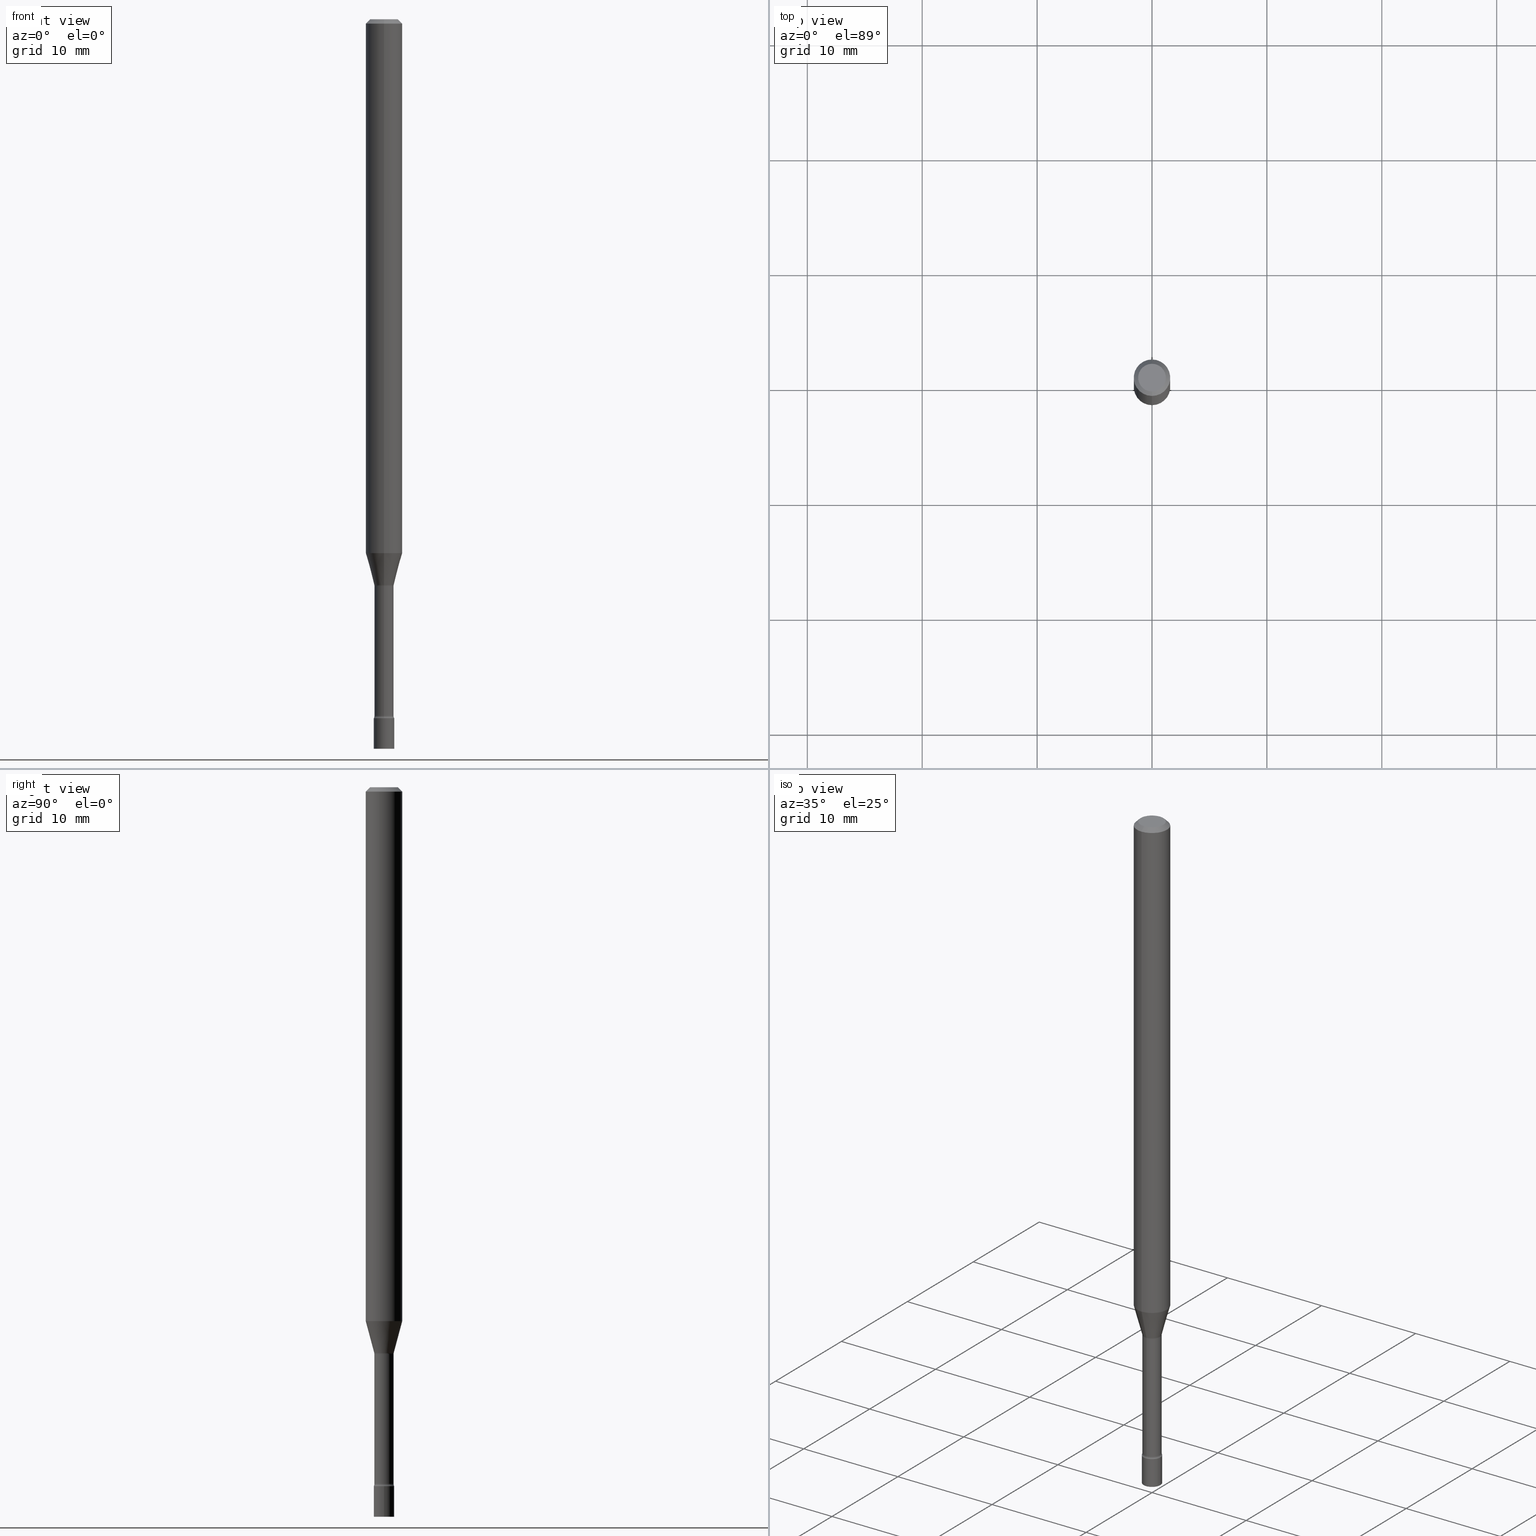
[diagram: canonical four-view strip — front | top / right | iso, engineering-drawing reading convention]
A machine part, canonical four-view strip (front | top / right | iso — engineering-drawing reading convention). The complete STEP part file that produces these views, byte-faithful:
ISO-10303-21;
HEADER;
FILE_DESCRIPTION (( 'STEP AP203' ),
    '1' );
FILE_NAME ('03577.STEP',
    '2024-03-08T21:54:35',
    ( '' ),
    ( '' ),
    'SwSTEP 2.0',
    'SolidWorks 2023',
    '' );
FILE_SCHEMA (( 'CONFIG_CONTROL_DESIGN' ));
ENDSEC;

DATA;
#1 = ORIENTED_EDGE ( 'NONE', *, *, #314, .F. ) ;
#2 = PERSON_AND_ORGANIZATION ( #448, #469 ) ;
#3 = DIRECTION ( 'NONE',  ( 1.000000000000000000, -6.982962677686265922E-15, 4.876176775795936353E-29 ) ) ;
#4 = DIRECTION ( 'NONE',  ( -6.982962677686265133E-15, -1.000000000000000000, 3.491404096004088534E-15 ) ) ;
#5 = PERSON_AND_ORGANIZATION_ROLE ( 'design_supplier' ) ;
#6 = DIRECTION ( 'NONE',  ( 2.438088387897960049E-29, -3.491481338843145188E-15, -1.000000000000000000 ) ) ;
#7 = ORIENTED_EDGE ( 'NONE', *, *, #312, .F. ) ;
#8 = DIRECTION ( 'NONE',  ( 6.982962677686265922E-15, 1.000000000000000000, -3.483106191921935554E-15 ) ) ;
#9 = CARTESIAN_POINT ( 'NONE',  ( 3.407447217031636901E-16, 0.03341111260565721164, -1.938092501787273214 ) ) ;
#10 = CIRCLE ( 'NONE', #306, 0.01500000000000001853 ) ;
#11 = AXIS2_PLACEMENT_3D ( 'NONE', #175, #324, #55 ) ;
#12 = CYLINDRICAL_SURFACE ( 'NONE', #33, 0.03290000000000001951 ) ;
#13 = DIRECTION ( 'NONE',  ( -2.445522744571361657E-29, 3.491404096004088929E-15, 1.000000000000000000 ) ) ;
#14 = DIRECTION ( 'NONE',  ( -6.982962677686266711E-15, -1.000000000000000000, 0.000000000000000000 ) ) ;
#15 = ORIENTED_EDGE ( 'NONE', *, *, #112, .T. ) ;
#16 = CC_DESIGN_DATE_AND_TIME_ASSIGNMENT ( #65, #228, ( #121 ) ) ;
#17 = ADVANCED_BREP_SHAPE_REPRESENTATION ( '03577', ( #242, #407, #245 ), #375 ) ;
#18 = PERSON_AND_ORGANIZATION_ROLE ( 'design_owner' ) ;
#19 = ORIENTED_EDGE ( 'NONE', *, *, #79, .T. ) ;
#20 = DIRECTION ( 'NONE',  ( -6.982962677686265133E-15, -1.000000000000000000, 3.491404096004088534E-15 ) ) ;
#21 = CALENDAR_DATE ( 2024, 8, 3 ) ;
#22 = CARTESIAN_POINT ( 'NONE',  ( 0.000000000000000000, 0.000000000000000000, 0.000000000000000000 ) ) ;
#23 = AXIS2_PLACEMENT_3D ( 'NONE', #271, #36, #191 ) ;
#24 = ORIENTED_EDGE ( 'NONE', *, *, #309, .T. ) ;
#25 = CARTESIAN_POINT ( 'NONE',  ( 5.838179168722291637E-29, -8.335372575132118350E-15, -2.387345589506696175 ) ) ;
#26 = FACE_OUTER_BOUND ( 'NONE', #229, .T. ) ;
#27 = EDGE_CURVE ( 'NONE', #495, #150, #88, .T. ) ;
#28 = APPROVAL ( #453, 'UNSPECIFIED' ) ;
#29 = CARTESIAN_POINT ( 'NONE',  ( -3.344839122611141326E-16, -0.04790000000000838032, -2.387345589506695731 ) ) ;
#30 = ORIENTED_EDGE ( 'NONE', *, *, #327, .T. ) ;
#31 = CARTESIAN_POINT ( 'NONE',  ( 4.474160396507796531E-29, -6.387633060957110208E-15, -1.829531296095961546 ) ) ;
#32 = DIRECTION ( 'NONE',  ( -2.445522744571361657E-29, 3.491404096004088929E-15, 1.000000000000000000 ) ) ;
#33 = AXIS2_PLACEMENT_3D ( 'NONE', #187, #503, #20 ) ;
#34 = ORIENTED_EDGE ( 'NONE', *, *, #449, .T. ) ;
#35 = ORIENTED_EDGE ( 'NONE', *, *, #396, .F. ) ;
#36 = DIRECTION ( 'NONE',  ( 2.445522744571361377E-29, -3.491404096004088929E-15, -1.000000000000000000 ) ) ;
#37 = LINE ( 'NONE', #86, #489 ) ;
#38 = AXIS2_PLACEMENT_3D ( 'NONE', #488, #378, #490 ) ;
#39 = CARTESIAN_POINT ( 'NONE',  ( 5.856897790813402508E-29, -8.362097806529333416E-15, -2.395000000000000018 ) ) ;
#40 = CARTESIAN_POINT ( 'NONE',  ( 0.03500000000000000333, -2.444036937190193250E-16, 1.706661871528577808E-30 ) ) ;
#41 = DIRECTION ( 'NONE',  ( -2.445522744571361377E-29, 3.491404096004088929E-15, 1.000000000000000000 ) ) ;
#42 = EDGE_LOOP ( 'NONE', ( #326, #232, #512, #414 ) ) ;
#43 = DIRECTION ( 'NONE',  ( -2.445468806185136597E-29, 3.491481338843145583E-15, 1.000000000000000000 ) ) ;
#44 = ORIENTED_EDGE ( 'NONE', *, *, #240, .F. ) ;
#45 = APPROVAL ( #251, 'UNSPECIFIED' ) ;
#46 = CARTESIAN_POINT ( 'NONE',  ( 2.374002335562198975E-16, 0.03341111260565721164, -1.938092501787273214 ) ) ;
#47 = ORIENTED_EDGE ( 'NONE', *, *, #460, .F. ) ;
#48 = DIRECTION ( 'NONE',  ( -2.445522744571361657E-29, 3.491404096004088929E-15, 1.000000000000000000 ) ) ;
#49 = PRODUCT_DEFINITION_FORMATION_WITH_SPECIFIED_SOURCE ( 'ANY', '', #520, .NOT_KNOWN. ) ;
#50 = CARTESIAN_POINT ( 'NONE',  ( -3.773273898774340269E-16, -0.04749999999999999362, 1.369241145974700294E-16 ) ) ;
#51 = CIRCLE ( 'NONE', #258, 0.01500000000000001853 ) ;
#52 = DIRECTION ( 'NONE',  ( -2.445522744571361657E-29, 3.491404096004088929E-15, 1.000000000000000000 ) ) ;
#53 = PERSON_AND_ORGANIZATION_ROLE ( 'creator' ) ;
#54 = VERTEX_POINT ( 'NONE', #93 ) ;
#55 = DIRECTION ( 'NONE',  ( -6.982962677686265922E-15, -1.000000000000000000, 3.491404096004088929E-15 ) ) ;
#56 = CYLINDRICAL_SURFACE ( 'NONE', #462, 0.06250000000000000000 ) ;
#57 = DIRECTION ( 'NONE',  ( -6.982962677686267499E-15, -1.000000000000000000, 0.000000000000000000 ) ) ;
#58 = ADVANCED_FACE ( 'NONE', ( #138 ), #510, .F. ) ;
#59 = VERTEX_POINT ( 'NONE', #134 ) ;
#60 = DIRECTION ( 'NONE',  ( -6.982962677686265922E-15, -1.000000000000000000, 0.000000000000000000 ) ) ;
#61 = AXIS2_PLACEMENT_3D ( 'NONE', #420, #225, #336 ) ;
#62 = CALENDAR_DATE ( 2024, 8, 3 ) ;
#63 = VERTEX_POINT ( 'NONE', #164 ) ;
#64 = DIRECTION ( 'NONE',  ( -2.445468806185136877E-29, 3.491481338843145188E-15, 1.000000000000000000 ) ) ;
#65 = DATE_AND_TIME ( #21, #247 ) ;
#66 = ORIENTED_EDGE ( 'NONE', *, *, #399, .T. ) ;
#67 = CARTESIAN_POINT ( 'NONE',  ( -2.297394720958782513E-16, -0.03290000000000001951, 1.148671947585345758E-16 ) ) ;
#68 = VERTEX_POINT ( 'NONE', #491 ) ;
#69 = AXIS2_PLACEMENT_3D ( 'NONE', #297, #145, #14 ) ;
#70 = ORIENTED_EDGE ( 'NONE', *, *, #220, .T. ) ;
#71 = AXIS2_PLACEMENT_3D ( 'NONE', #171, #291, #207 ) ;
#72 = ORIENTED_EDGE ( 'NONE', *, *, #317, .F. ) ;
#73 = DIRECTION ( 'NONE',  ( -2.445522744571361657E-29, 3.491404096004088929E-15, 1.000000000000000000 ) ) ;
#74 = CARTESIAN_POINT ( 'NONE',  ( 4.739649294203989470E-29, -6.766664099174897486E-15, -1.938092501787273214 ) ) ;
#75 = DIRECTION ( 'NONE',  ( -6.982962677686265922E-15, -1.000000000000000000, 3.483106191921935554E-15 ) ) ;
#76 = DIRECTION ( 'NONE',  ( -6.982962677686266711E-15, -1.000000000000000000, 0.000000000000000000 ) ) ;
#77 = ORIENTED_EDGE ( 'NONE', *, *, #231, .F. ) ;
#78 = ORIENTED_EDGE ( 'NONE', *, *, #236, .T. ) ;
#79 = EDGE_CURVE ( 'NONE', #421, #115, #257, .T. ) ;
#80 = DIRECTION ( 'NONE',  ( -6.982962677686266711E-15, -1.000000000000000000, 0.000000000000000000 ) ) ;
#81 = ORIENTED_EDGE ( 'NONE', *, *, #312, .T. ) ;
#82 = TOROIDAL_SURFACE ( 'NONE', #370, 0.04789999999999999813, 0.01500000000000002373 ) ;
#83 = FACE_OUTER_BOUND ( 'NONE', #372, .T. ) ;
#84 = ORIENTED_EDGE ( 'NONE', *, *, #27, .T. ) ;
#85 = ORIENTED_EDGE ( 'NONE', *, *, #159, .T. ) ;
#86 = CARTESIAN_POINT ( 'NONE',  ( 2.337685600650730505E-16, 0.03290000000000001951, -1.148671947585345758E-16 ) ) ;
#87 = ORIENTED_EDGE ( 'NONE', *, *, #92, .F. ) ;
#88 = CIRCLE ( 'NONE', #170, 0.03500000000000000333 ) ;
#89 = CIRCLE ( 'NONE', #155, 0.03290000000000004032 ) ;
#90 = DIRECTION ( 'NONE',  ( -6.982962677686265922E-15, -1.000000000000000000, 3.491404096004088929E-15 ) ) ;
#91 = ADVANCED_FACE ( 'NONE', ( #290 ), #56, .T. ) ;
#92 = EDGE_CURVE ( 'NONE', #63, #274, #363, .T. ) ;
#93 = CARTESIAN_POINT ( 'NONE',  ( -2.333085523452773116E-16, -0.03341111260567074248, -1.938092501787273214 ) ) ;
#94 = LENGTH_MEASURE_WITH_UNIT ( LENGTH_MEASURE( 0.02539999999999999897 ), #98 );
#95 = CONICAL_SURFACE ( 'NONE', #69, 0.03341111260566397706, 0.2617993877991501850 ) ;
#96 = CARTESIAN_POINT ( 'NONE',  ( -2.333085523452773116E-16, -0.03341111260567074248, -1.938092501787273214 ) ) ;
#97 = VERTEX_POINT ( 'NONE', #435 ) ;
#98 =( LENGTH_UNIT ( ) NAMED_UNIT ( * ) SI_UNIT ( $, .METRE. ) );
#99 = CARTESIAN_POINT ( 'NONE',  ( 6.113672015462842613E-29, -8.728703347107864943E-15, -2.500000000000000000 ) ) ;
#100 = ORIENTED_EDGE ( 'NONE', *, *, #129, .T. ) ;
#101 = COORDINATED_UNIVERSAL_TIME_OFFSET ( 5, 0, .BEHIND. ) ;
#102 = FACE_OUTER_BOUND ( 'NONE', #174, .T. ) ;
#103 = CIRCLE ( 'NONE', #388, 0.04749999999999999362 ) ;
#104 = VECTOR ( 'NONE', #219, 39.37007874015748143 ) ;
#105 = DIRECTION ( 'NONE',  ( -6.982962677686265922E-15, -1.000000000000000000, 0.000000000000000000 ) ) ;
#106 = ORIENTED_EDGE ( 'NONE', *, *, #220, .F. ) ;
#107 = EDGE_CURVE ( 'NONE', #481, #274, #166, .T. ) ;
#108 = APPROVAL_ROLE ( '' ) ;
#109 = ORIENTED_EDGE ( 'NONE', *, *, #309, .F. ) ;
#110 = DIRECTION ( 'NONE',  ( -2.445522744571361657E-29, 3.491404096004088929E-15, 1.000000000000000000 ) ) ;
#111 = ORIENTED_EDGE ( 'NONE', *, *, #211, .F. ) ;
#112 = EDGE_CURVE ( 'NONE', #506, #421, #10, .T. ) ;
#113 = DATE_AND_TIME ( #298, #194 ) ;
#114 = CYLINDRICAL_SURFACE ( 'NONE', #369, 0.03500000000000000333 ) ;
#115 = VERTEX_POINT ( 'NONE', #356 ) ;
#116 = CARTESIAN_POINT ( 'NONE',  ( -4.364351673553912750E-16, -0.06250000000000005551, -0.01499999999999981209 ) ) ;
#117 = CIRCLE ( 'NONE', #239, 0.01500000000000000291 ) ;
#118 = VERTEX_POINT ( 'NONE', #255 ) ;
#119 = ADVANCED_FACE ( 'NONE', ( #466 ), #114, .T. ) ;
#120 = DIRECTION ( 'NONE',  ( -6.982962677686265922E-15, -1.000000000000000000, 4.370956789862821150E-15 ) ) ;
#121 = SECURITY_CLASSIFICATION ( '', '', #325 ) ;
#122 = CC_DESIGN_PERSON_AND_ORGANIZATION_ASSIGNMENT ( #364, #5, ( #49 ) ) ;
#123 = DIRECTION ( 'NONE',  ( -6.982962677686266711E-15, -1.000000000000000000, 3.491404096004088929E-15 ) ) ;
#124 = AXIS2_PLACEMENT_3D ( 'NONE', #509, #362, #4 ) ;
#125 = CC_DESIGN_SECURITY_CLASSIFICATION ( #121, ( #49 ) ) ;
#126 = ORIENTED_EDGE ( 'NONE', *, *, #149, .T. ) ;
#127 = APPLICATION_CONTEXT ( 'configuration controlled 3d designs of mechanical parts and assemblies' ) ;
#128 = UNCERTAINTY_MEASURE_WITH_UNIT (LENGTH_MEASURE( 1.000000000000000082E-05 ), #446, 'distance_accuracy_value', 'NONE');
#129 = EDGE_CURVE ( 'NONE', #118, #186, #499, .T. ) ;
#130 = ORIENTED_EDGE ( 'NONE', *, *, #289, .T. ) ;
#131 = CC_DESIGN_DATE_AND_TIME_ASSIGNMENT ( #330, #296, ( #193 ) ) ;
#132 = DIRECTION ( 'NONE',  ( 1.839019923739599526E-15, 0.2588190451025248473, 0.9659258262890670910 ) ) ;
#133 = TOROIDAL_SURFACE ( 'NONE', #213, 0.04790000000000004671, 0.01500000000000000638 ) ;
#134 = CARTESIAN_POINT ( 'NONE',  ( 0.03500000000000000333, -8.606501500248353382E-15, -2.395000000000000018 ) ) ;
#135 = FACE_OUTER_BOUND ( 'NONE', #380, .T. ) ;
#136 = ORIENTED_EDGE ( 'NONE', *, *, #299, .T. ) ;
#137 = PERSON_AND_ORGANIZATION ( #448, #469 ) ;
#138 = FACE_OUTER_BOUND ( 'NONE', #301, .T. ) ;
#139 = CALENDAR_DATE ( 2024, 8, 3 ) ;
#140 = AXIS2_PLACEMENT_3D ( 'NONE', #400, #43, #199 ) ;
#141 = VERTEX_POINT ( 'NONE', #153 ) ;
#142 = PERSON_AND_ORGANIZATION ( #448, #469 ) ;
#143 = DIRECTION ( 'NONE',  ( -2.445522744571361657E-29, 3.491404096004088929E-15, 1.000000000000000000 ) ) ;
#144 = PERSON_AND_ORGANIZATION ( #448, #469 ) ;
#145 = DIRECTION ( 'NONE',  ( -2.445522744571361657E-29, 3.491404096004088929E-15, 1.000000000000000000 ) ) ;
#146 = APPLICATION_PROTOCOL_DEFINITION ( 'international standard', 'config_control_design', 1994, #169 ) ;
#147 = CIRCLE ( 'NONE', #223, 0.06250000000000000000 ) ;
#148 = FACE_OUTER_BOUND ( 'NONE', #310, .T. ) ;
#149 = EDGE_CURVE ( 'NONE', #237, #274, #162, .T. ) ;
#150 = VERTEX_POINT ( 'NONE', #413 ) ;
#151 = FACE_OUTER_BOUND ( 'NONE', #184, .T. ) ;
#152 = ORIENTED_EDGE ( 'NONE', *, *, #474, .F. ) ;
#153 = CARTESIAN_POINT ( 'NONE',  ( -4.364351673553470495E-16, -0.06250000000000642542, -1.829531296095961324 ) ) ;
#154 = DIRECTION ( 'NONE',  ( -2.445522744571361657E-29, 3.491404096004088929E-15, 1.000000000000000000 ) ) ;
#155 = AXIS2_PLACEMENT_3D ( 'NONE', #445, #254, #410 ) ;
#156 = CARTESIAN_POINT ( 'NONE',  ( 6.113672015462842613E-29, -8.728703347107864943E-15, -2.500000000000000000 ) ) ;
#157 = DIRECTION ( 'NONE',  ( -6.982962677686265922E-15, -1.000000000000000000, 4.370956789862821150E-15 ) ) ;
#158 = COORDINATED_UNIVERSAL_TIME_OFFSET ( 5, 0, .BEHIND. ) ;
#159 = EDGE_CURVE ( 'NONE', #150, #495, #441, .T. ) ;
#160 = CARTESIAN_POINT ( 'NONE',  ( 3.668284116857050035E-31, -5.237106144006144215E-17, -0.01500000000000003067 ) ) ;
#161 = DIRECTION ( 'NONE',  ( 1.000000000000000000, -6.982962677686276966E-15, 0.000000000000000000 ) ) ;
#162 = CIRCLE ( 'NONE', #342, 0.06250000000000000000 ) ;
#163 = CARTESIAN_POINT ( 'NONE',  ( -4.364351673553916201E-16, -0.06250000000000000000, 2.182127560002555580E-16 ) ) ;
#164 = CARTESIAN_POINT ( 'NONE',  ( 3.840629472727447874E-16, 0.04749999999999999362, -1.947592745229184119E-16 ) ) ;
#165 = TOROIDAL_SURFACE ( 'NONE', #11, 0.04790000000000004671, 0.01500000000000000638 ) ;
#166 = LINE ( 'NONE', #403, #230 ) ;
#167 = CALENDAR_DATE ( 2024, 8, 3 ) ;
#168 = ADVANCED_FACE ( 'NONE', ( #345 ), #82, .F. ) ;
#169 = APPLICATION_CONTEXT ( 'configuration controlled 3d designs of mechanical parts and assemblies' ) ;
#170 = AXIS2_PLACEMENT_3D ( 'NONE', #99, #252, #409 ) ;
#171 = CARTESIAN_POINT ( 'NONE',  ( 4.749143512126885969E-29, -6.780218727287819481E-15, -1.941974787463811136 ) ) ;
#172 = AXIS2_PLACEMENT_3D ( 'NONE', #160, #311, #75 ) ;
#173 = COORDINATED_UNIVERSAL_TIME_OFFSET ( 5, 0, .BEHIND. ) ;
#174 = EDGE_LOOP ( 'NONE', ( #81, #329, #201, #300 ) ) ;
#175 = CARTESIAN_POINT ( 'NONE',  ( 5.838179168722291637E-29, -8.335372575132118350E-15, -2.387345589506696175 ) ) ;
#176 = PERSON_AND_ORGANIZATION_ROLE ( 'creator' ) ;
#177 = ORIENTED_EDGE ( 'NONE', *, *, #317, .T. ) ;
#178 = ADVANCED_FACE ( 'NONE', ( #198 ), #465, .F. ) ;
#179 = DIRECTION ( 'NONE',  ( 1.000000000000000000, -7.105427357601001070E-15, 4.926314562590126478E-29 ) ) ;
#180 = DIRECTION ( 'NONE',  ( -4.851104656540964275E-15, -0.7071067811865500152, -0.7071067811865450192 ) ) ;
#181 = ORIENTED_EDGE ( 'NONE', *, *, #482, .T. ) ;
#182 = CARTESIAN_POINT ( 'NONE',  ( 3.668284116857050035E-31, -5.237106144006144215E-17, -0.01500000000000003067 ) ) ;
#183 = CARTESIAN_POINT ( 'NONE',  ( 5.838307938290751583E-29, -8.335188169780975130E-15, -2.387345589506696175 ) ) ;
#184 = EDGE_LOOP ( 'NONE', ( #78, #34, #7, #214 ) ) ;
#185 = DIRECTION ( 'NONE',  ( -2.445522744571361657E-29, 3.491404096004088929E-15, 1.000000000000000000 ) ) ;
#186 = VERTEX_POINT ( 'NONE', #401 ) ;
#187 = CARTESIAN_POINT ( 'NONE',  ( 0.000000000000000000, 0.000000000000000000, 0.000000000000000000 ) ) ;
#188 = CIRCLE ( 'NONE', #203, 0.03500000000000000333 ) ;
#189 = DIRECTION ( 'NONE',  ( 1.000000000000000000, -6.982962677686276966E-15, 0.000000000000000000 ) ) ;
#190 = DIRECTION ( 'NONE',  ( -6.982962677686266711E-15, -1.000000000000000000, 3.491404096004088929E-15 ) ) ;
#191 = DIRECTION ( 'NONE',  ( 6.982962677686265922E-15, 1.000000000000000000, -3.491404096004088929E-15 ) ) ;
#192 = ADVANCED_FACE ( 'NONE', ( #200 ), #518, .T. ) ;
#193 = PRODUCT_DEFINITION ( 'UNKNOWN', '', #49, #205 ) ;
#194 = LOCAL_TIME ( 16, 54, 35.00000000000000000, #374 ) ;
#195 = CIRCLE ( 'NONE', #246, 0.03500000000000000333 ) ;
#196 = APPROVAL_PERSON_ORGANIZATION ( #2, #28, #486 ) ;
#197 = CARTESIAN_POINT ( 'NONE',  ( 5.856897790813402508E-29, -8.362097806529333416E-15, -2.395000000000000018 ) ) ;
#198 = FACE_OUTER_BOUND ( 'NONE', #493, .T. ) ;
#199 = DIRECTION ( 'NONE',  ( 1.000000000000000000, -6.982962677686276966E-15, 0.000000000000000000 ) ) ;
#200 = FACE_OUTER_BOUND ( 'NONE', #470, .T. ) ;
#201 = ORIENTED_EDGE ( 'NONE', *, *, #149, .F. ) ;
#202 = EDGE_CURVE ( 'NONE', #141, #237, #350, .T. ) ;
#203 = AXIS2_PLACEMENT_3D ( 'NONE', #39, #480, #161 ) ;
#204 = LOCAL_TIME ( 16, 54, 35.00000000000000000, #173 ) ;
#205 = DESIGN_CONTEXT ( 'detailed design', #169, 'design' ) ;
#206 = CC_DESIGN_PERSON_AND_ORGANIZATION_ASSIGNMENT ( #438, #18, ( #520 ) ) ;
#207 = DIRECTION ( 'NONE',  ( -6.982962677686265133E-15, -1.000000000000000000, 0.000000000000000000 ) ) ;
#208 = DIRECTION ( 'NONE',  ( -6.982962677686265133E-15, -1.000000000000000000, 0.000000000000000000 ) ) ;
#209 = MECHANICAL_CONTEXT ( 'NONE', #127, 'mechanical' ) ;
#210 = LINE ( 'NONE', #96, #261 ) ;
#211 = EDGE_CURVE ( 'NONE', #118, #421, #37, .T. ) ;
#212 = CARTESIAN_POINT ( 'NONE',  ( 4.364351673553919652E-16, 0.06249999999999995143, -0.01500000000000024751 ) ) ;
#213 = AXIS2_PLACEMENT_3D ( 'NONE', #25, #335, #463 ) ;
#214 = ORIENTED_EDGE ( 'NONE', *, *, #327, .F. ) ;
#215 = DIRECTION ( 'NONE',  ( -2.445522744571361657E-29, 3.491404096004088929E-15, 1.000000000000000000 ) ) ;
#216 = DIRECTION ( 'NONE',  ( 0.000000000000000000, 0.000000000000000000, 1.000000000000000000 ) ) ;
#217 = ORIENTED_EDGE ( 'NONE', *, *, #474, .T. ) ;
#218 = DIRECTION ( 'NONE',  ( 1.000000000000000000, -6.982962677686265922E-15, 4.876176775795936353E-29 ) ) ;
#219 = DIRECTION ( 'NONE',  ( -2.445522744571361657E-29, 3.491404096004088929E-15, 1.000000000000000000 ) ) ;
#220 = EDGE_CURVE ( 'NONE', #507, #63, #411, .T. ) ;
#221 = VECTOR ( 'NONE', #132, 39.37007874015748143 ) ;
#222 = ORIENTED_EDGE ( 'NONE', *, *, #112, .F. ) ;
#223 = AXIS2_PLACEMENT_3D ( 'NONE', #31, #32, #157 ) ;
#224 = FACE_OUTER_BOUND ( 'NONE', #386, .T. ) ;
#225 = DIRECTION ( 'NONE',  ( 1.000000000000000000, -7.105427357601001070E-15, 4.926314562590126478E-29 ) ) ;
#226 = DIRECTION ( 'NONE',  ( -2.445522744571361657E-29, 3.491404096004088929E-15, 1.000000000000000000 ) ) ;
#227 = CARTESIAN_POINT ( 'NONE',  ( 2.444036937190778979E-16, 0.03499999999999164196, -2.395000000000000018 ) ) ;
#228 = DATE_TIME_ROLE ( 'classification_date' ) ;
#229 = EDGE_LOOP ( 'NONE', ( #341, #263, #30, #77 ) ) ;
#230 = VECTOR ( 'NONE', #48, 39.37007874015748143 ) ;
#231 = EDGE_CURVE ( 'NONE', #481, #141, #147, .T. ) ;
#232 = ORIENTED_EDGE ( 'NONE', *, *, #231, .T. ) ;
#233 = FACE_OUTER_BOUND ( 'NONE', #275, .T. ) ;
#234 = ORIENTED_EDGE ( 'NONE', *, *, #27, .F. ) ;
#235 = ADVANCED_FACE ( 'NONE', ( #417 ), #468, .T. ) ;
#236 = EDGE_CURVE ( 'NONE', #54, #506, #269, .T. ) ;
#237 = VERTEX_POINT ( 'NONE', #116 ) ;
#238 = VECTOR ( 'NONE', #444, 39.37007874015748143 ) ;
#239 = AXIS2_PLACEMENT_3D ( 'NONE', #29, #340, #332 ) ;
#240 = EDGE_CURVE ( 'NONE', #68, #186, #195, .T. ) ;
#241 = ADVANCED_FACE ( 'NONE', ( #102 ), #337, .T. ) ;
#242 = MANIFOLD_SOLID_BREP ( 'Body-Move/Copy2[1]', #397 ) ;
#243 = LINE ( 'NONE', #40, #428 ) ;
#244 = ADVANCED_FACE ( 'NONE', ( #26 ), #95, .T. ) ;
#245 = AXIS2_PLACEMENT_3D ( 'NONE', #492, #216, #248 ) ;
#246 = AXIS2_PLACEMENT_3D ( 'NONE', #268, #73, #60 ) ;
#247 = LOCAL_TIME ( 16, 54, 35.00000000000000000, #158 ) ;
#248 = DIRECTION ( 'NONE',  ( 1.000000000000000000, 0.000000000000000000, 0.000000000000000000 ) ) ;
#249 = ORIENTED_EDGE ( 'NONE', *, *, #377, .T. ) ;
#250 = EDGE_CURVE ( 'NONE', #150, #97, #328, .T. ) ;
#251 = APPROVAL_STATUS ( 'not_yet_approved' ) ;
#252 = DIRECTION ( 'NONE',  ( -2.445468806185136597E-29, 3.491481338843145583E-15, 1.000000000000000000 ) ) ;
#253 = CARTESIAN_POINT ( 'NONE',  ( 0.000000000000000000, 0.000000000000000000, 0.000000000000000000 ) ) ;
#254 = DIRECTION ( 'NONE',  ( -2.445522744571361657E-29, 3.491404096004088929E-15, 1.000000000000000000 ) ) ;
#255 = CARTESIAN_POINT ( 'NONE',  ( 2.412292587906126425E-16, 0.03289999999999169977, -2.387345589506696175 ) ) ;
#256 = ORIENTED_EDGE ( 'NONE', *, *, #517, .F. ) ;
#257 = CIRCLE ( 'NONE', #313, 0.03289999999999999869 ) ;
#258 = AXIS2_PLACEMENT_3D ( 'NONE', #494, #451, #57 ) ;
#259 = EDGE_CURVE ( 'NONE', #507, #237, #373, .T. ) ;
#260 = DATE_AND_TIME ( #139, #286 ) ;
#261 = VECTOR ( 'NONE', #368, 39.37007874015749564 ) ;
#262 = DIRECTION ( 'NONE',  ( -2.445522744571361657E-29, 3.491404096004088929E-15, 1.000000000000000000 ) ) ;
#263 = ORIENTED_EDGE ( 'NONE', *, *, #396, .T. ) ;
#264 = LINE ( 'NONE', #67, #104 ) ;
#265 = EDGE_LOOP ( 'NONE', ( #234, #316 ) ) ;
#266 = AXIS2_PLACEMENT_3D ( 'NONE', #475, #352, #8 ) ;
#267 = DIRECTION ( 'NONE',  ( -2.445468806185136597E-29, 3.491481338843145583E-15, 1.000000000000000000 ) ) ;
#268 = CARTESIAN_POINT ( 'NONE',  ( 5.857026973248412116E-29, -8.361912809929792676E-15, -2.395000000000000018 ) ) ;
#269 = CIRCLE ( 'NONE', #38, 0.03341111260566397706 ) ;
#270 = ADVANCED_FACE ( 'NONE', ( #224 ), #133, .F. ) ;
#271 = CARTESIAN_POINT ( 'NONE',  ( 3.316907271900976096E-16, 0.04749999999999999362, -1.803004845415563224E-16 ) ) ;
#272 = PRODUCT_DEFINITION_SHAPE ( 'NONE', 'NONE',  #193 ) ;
#273 = DIRECTION ( 'NONE',  ( -6.982962677686265922E-15, -1.000000000000000000, 3.483106191921935554E-15 ) ) ;
#274 = VERTEX_POINT ( 'NONE', #379 ) ;
#275 = EDGE_LOOP ( 'NONE', ( #393, #1, #177, #331 ) ) ;
#276 = CIRCLE ( 'NONE', #321, 0.03341111260566397706 ) ;
#277 = ORIENTED_EDGE ( 'NONE', *, *, #517, .T. ) ;
#278 = DIRECTION ( 'NONE',  ( -2.445468806185136877E-29, 3.491481338843145188E-15, 1.000000000000000000 ) ) ;
#279 = CONICAL_SURFACE ( 'NONE', #450, 0.03341111260566397706, 0.2617993877991501850 ) ;
#280 = DIRECTION ( 'NONE',  ( -1.000000000000000000, 6.982962677686265922E-15, -4.876176775795935793E-29 ) ) ;
#281 = FACE_OUTER_BOUND ( 'NONE', #447, .T. ) ;
#282 = CARTESIAN_POINT ( 'NONE',  ( 4.749143512126885969E-29, -6.780218727287819481E-15, -1.941974787463811136 ) ) ;
#283 = CARTESIAN_POINT ( 'NONE',  ( 5.857026973248412116E-29, -8.361912809929792676E-15, -2.395000000000000018 ) ) ;
#284 = ADVANCED_FACE ( 'NONE', ( #83 ), #392, .F. ) ;
#285 =( NAMED_UNIT ( * ) PLANE_ANGLE_UNIT ( ) SI_UNIT ( $, .RADIAN. ) );
#286 = LOCAL_TIME ( 16, 54, 35.00000000000000000, #101 ) ;
#287 = AXIS2_PLACEMENT_3D ( 'NONE', #426, #6, #280 ) ;
#288 = DIRECTION ( 'NONE',  ( -2.445522744571361657E-29, 3.491404096004088929E-15, 1.000000000000000000 ) ) ;
#289 = EDGE_CURVE ( 'NONE', #274, #237, #433, .T. ) ;
#290 = FACE_OUTER_BOUND ( 'NONE', #42, .T. ) ;
#291 = DIRECTION ( 'NONE',  ( -2.445522744571361657E-29, 3.491404096004088929E-15, 1.000000000000000000 ) ) ;
#292 = FACE_OUTER_BOUND ( 'NONE', #308, .T. ) ;
#293 = DIRECTION ( 'NONE',  ( -6.982962677686265922E-15, -1.000000000000000000, 3.491404096004088929E-15 ) ) ;
#294 = APPROVAL_ROLE ( '' ) ;
#295 = CLOSED_SHELL ( 'NONE', ( #58, #402, #270, #431, #241, #394, #244, #91, #440, #284, #178, #347, #390, #168 ) ) ;
#296 = DATE_TIME_ROLE ( 'creation_date' ) ;
#297 = CARTESIAN_POINT ( 'NONE',  ( 4.739649294203989470E-29, -6.766664099174897486E-15, -1.938092501787273214 ) ) ;
#298 = CALENDAR_DATE ( 2024, 8, 3 ) ;
#299 = EDGE_CURVE ( 'NONE', #97, #59, #188, .T. ) ;
#300 = ORIENTED_EDGE ( 'NONE', *, *, #202, .F. ) ;
#301 = EDGE_LOOP ( 'NONE', ( #35, #15, #19, #461 ) ) ;
#302 = FACE_OUTER_BOUND ( 'NONE', #514, .T. ) ;
#303 = DIRECTION ( 'NONE',  ( 2.445522744571361657E-29, -3.491404096004088929E-15, -1.000000000000000000 ) ) ;
#304 = ORIENTED_EDGE ( 'NONE', *, *, #314, .T. ) ;
#305 = ORIENTED_EDGE ( 'NONE', *, *, #250, .T. ) ;
#306 = AXIS2_PLACEMENT_3D ( 'NONE', #359, #179, #505 ) ;
#307 = CIRCLE ( 'NONE', #478, 0.03290000000000004032 ) ;
#308 = EDGE_LOOP ( 'NONE', ( #84, #305, #109, #47 ) ) ;
#309 = EDGE_CURVE ( 'NONE', #59, #97, #464, .T. ) ;
#310 = EDGE_LOOP ( 'NONE', ( #111, #361, #217, #384 ) ) ;
#311 = DIRECTION ( 'NONE',  ( -2.445522744571361657E-29, 3.491404096004088929E-15, 1.000000000000000000 ) ) ;
#312 = EDGE_CURVE ( 'NONE', #141, #481, #315, .T. ) ;
#313 = AXIS2_PLACEMENT_3D ( 'NONE', #282, #143, #208 ) ;
#314 = EDGE_CURVE ( 'NONE', #467, #118, #307, .T. ) ;
#315 = CIRCLE ( 'NONE', #418, 0.06250000000000000000 ) ;
#316 = ORIENTED_EDGE ( 'NONE', *, *, #159, .F. ) ;
#317 = EDGE_CURVE ( 'NONE', #467, #68, #117, .T. ) ;
#318 = LINE ( 'NONE', #46, #221 ) ;
#319 = DIRECTION ( 'NONE',  ( -2.445522744571361657E-29, 3.491404096004088929E-15, 1.000000000000000000 ) ) ;
#320 = CARTESIAN_POINT ( 'NONE',  ( 7.071859951680311666E-46, -1.009629571283810467E-31, -2.891757996272420356E-17 ) ) ;
#321 = AXIS2_PLACEMENT_3D ( 'NONE', #74, #185, #80 ) ;
#322 = CARTESIAN_POINT ( 'NONE',  ( 0.000000000000000000, 0.000000000000000000, 0.000000000000000000 ) ) ;
#323 = CARTESIAN_POINT ( 'NONE',  ( 4.749038765140760416E-29, -6.780368730933779783E-15, -1.941974787463811136 ) ) ;
#324 = DIRECTION ( 'NONE',  ( -2.445522744571361657E-29, 3.491404096004088929E-15, 1.000000000000000000 ) ) ;
#325 = SECURITY_CLASSIFICATION_LEVEL ( 'unclassified' ) ;
#326 = ORIENTED_EDGE ( 'NONE', *, *, #107, .F. ) ;
#327 = EDGE_CURVE ( 'NONE', #54, #141, #210, .T. ) ;
#328 = LINE ( 'NONE', #455, #376 ) ;
#329 = ORIENTED_EDGE ( 'NONE', *, *, #107, .T. ) ;
#330 = DATE_AND_TIME ( #62, #204 ) ;
#331 = ORIENTED_EDGE ( 'NONE', *, *, #240, .T. ) ;
#332 = DIRECTION ( 'NONE',  ( -6.982962677686266711E-15, -1.000000000000000000, 0.000000000000000000 ) ) ;
#333 = CARTESIAN_POINT ( 'NONE',  ( 4.474160396507796531E-29, -6.387633060957110208E-15, -1.829531296095961546 ) ) ;
#334 = APPROVAL_DATE_TIME ( #113, #519 ) ;
#335 = DIRECTION ( 'NONE',  ( -2.445522744571361657E-29, 3.491404096004088929E-15, 1.000000000000000000 ) ) ;
#336 = DIRECTION ( 'NONE',  ( 7.105427357601001859E-15, 1.000000000000000000, 0.000000000000000000 ) ) ;
#337 = CYLINDRICAL_SURFACE ( 'NONE', #405, 0.06250000000000000000 ) ;
#338 = DIRECTION ( 'NONE',  ( 6.982962677686265922E-15, 1.000000000000000000, -3.483106191921935554E-15 ) ) ;
#339 = ADVANCED_FACE ( 'NONE', ( #292 ), #365, .T. ) ;
#340 = DIRECTION ( 'NONE',  ( -1.000000000000000000, 6.982962677686265922E-15, -4.883557194083112340E-29 ) ) ;
#341 = ORIENTED_EDGE ( 'NONE', *, *, #449, .F. ) ;
#342 = AXIS2_PLACEMENT_3D ( 'NONE', #511, #262, #273 ) ;
#343 = PRODUCT_RELATED_PRODUCT_CATEGORY ( 'detail', '', ( #520 ) ) ;
#344 = PERSON_AND_ORGANIZATION_ROLE ( 'classification_officer' ) ;
#345 = FACE_OUTER_BOUND ( 'NONE', #457, .T. ) ;
#346 = ORIENTED_EDGE ( 'NONE', *, *, #236, .F. ) ;
#347 = ADVANCED_FACE ( 'NONE', ( #233 ), #165, .F. ) ;
#348 = CC_DESIGN_APPROVAL ( #45, ( #193 ) ) ;
#349 = VECTOR ( 'NONE', #180, 39.37007874015748143 ) ;
#350 = LINE ( 'NONE', #163, #500 ) ;
#351 = ORIENTED_EDGE ( 'NONE', *, *, #211, .T. ) ;
#352 = DIRECTION ( 'NONE',  ( 2.445522744571361657E-29, -3.491404096004088929E-15, -1.000000000000000000 ) ) ;
#353 = EDGE_CURVE ( 'NONE', #118, #467, #89, .T. ) ;
#354 = DIRECTION ( 'NONE',  ( 1.000000000000000000, -6.982962677686265922E-15, 4.876176775795935793E-29 ) ) ;
#355 = CARTESIAN_POINT ( 'NONE',  ( 4.749038765140760416E-29, -6.780368730933779783E-15, -1.941974787463811136 ) ) ;
#356 = CARTESIAN_POINT ( 'NONE',  ( -2.297394720958306238E-16, -0.03290000000000677799, -1.941974787463811136 ) ) ;
#357 = AXIS2_PLACEMENT_3D ( 'NONE', #227, #41, #90 ) ;
#358 = CONICAL_SURFACE ( 'NONE', #439, 0.06250000000000000000, 0.7853981633974483900 ) ;
#359 = CARTESIAN_POINT ( 'NONE',  ( 3.403499704291354060E-16, 0.04789999999999321884, -1.941974787463811358 ) ) ;
#360 = APPLICATION_PROTOCOL_DEFINITION ( 'international standard', 'config_control_design', 1994, #127 ) ;
#361 = ORIENTED_EDGE ( 'NONE', *, *, #353, .T. ) ;
#362 = DIRECTION ( 'NONE',  ( -2.445522744571361657E-29, 3.491404096004088929E-15, 1.000000000000000000 ) ) ;
#363 = LINE ( 'NONE', #212, #238 ) ;
#364 = PERSON_AND_ORGANIZATION ( #448, #469 ) ;
#365 = CYLINDRICAL_SURFACE ( 'NONE', #477, 0.03500000000000000333 ) ;
#366 = CC_DESIGN_PERSON_AND_ORGANIZATION_ASSIGNMENT ( #443, #344, ( #121 ) ) ;
#367 =( NAMED_UNIT ( * ) SI_UNIT ( $, .STERADIAN. ) SOLID_ANGLE_UNIT ( ) );
#368 = DIRECTION ( 'NONE',  ( -1.807323732225329350E-15, -0.2588190451025180194, 0.9659258262890689783 ) ) ;
#369 = AXIS2_PLACEMENT_3D ( 'NONE', #22, #267, #218 ) ;
#370 = AXIS2_PLACEMENT_3D ( 'NONE', #355, #13, #437 ) ;
#371 = ORIENTED_EDGE ( 'NONE', *, *, #299, .F. ) ;
#372 = EDGE_LOOP ( 'NONE', ( #66, #70 ) ) ;
#373 = LINE ( 'NONE', #452, #349 ) ;
#374 = COORDINATED_UNIVERSAL_TIME_OFFSET ( 5, 0, .BEHIND. ) ;
#375 =( GEOMETRIC_REPRESENTATION_CONTEXT ( 3 ) GLOBAL_UNCERTAINTY_ASSIGNED_CONTEXT ( ( #128 ) ) GLOBAL_UNIT_ASSIGNED_CONTEXT ( ( #446, #285, #367 ) ) REPRESENTATION_CONTEXT ( 'NONE', 'WORKASPACE' ) );
#376 = VECTOR ( 'NONE', #64, 39.37007874015748143 ) ;
#377 = EDGE_CURVE ( 'NONE', #54, #115, #51, .T. ) ;
#378 = DIRECTION ( 'NONE',  ( -2.445522744571361657E-29, 3.491404096004088929E-15, 1.000000000000000000 ) ) ;
#379 = CARTESIAN_POINT ( 'NONE',  ( 4.440892098501075812E-16, 0.06249999999999995143, -0.01500000000000024751 ) ) ;
#380 = EDGE_LOOP ( 'NONE', ( #106, #458, #126, #87 ) ) ;
#381 = DIRECTION ( 'NONE',  ( -6.982962677686265922E-15, -1.000000000000000000, 3.491404096004088929E-15 ) ) ;
#382 = DIRECTION ( 'NONE',  ( -6.982962677686266711E-15, -1.000000000000000000, 0.000000000000000000 ) ) ;
#383 = CYLINDRICAL_SURFACE ( 'NONE', #124, 0.03290000000000001951 ) ;
#384 = ORIENTED_EDGE ( 'NONE', *, *, #79, .F. ) ;
#385 = PERSON_AND_ORGANIZATION ( #448, #469 ) ;
#386 = EDGE_LOOP ( 'NONE', ( #425, #100, #181, #72 ) ) ;
#387 = DIRECTION ( 'NONE',  ( -2.445468806185136597E-29, 3.491481338843145583E-15, 1.000000000000000000 ) ) ;
#388 = AXIS2_PLACEMENT_3D ( 'NONE', #320, #504, #190 ) ;
#389 = CC_DESIGN_APPROVAL ( #28, ( #49 ) ) ;
#390 = ADVANCED_FACE ( 'NONE', ( #148 ), #12, .T. ) ;
#391 = CC_DESIGN_PERSON_AND_ORGANIZATION_ASSIGNMENT ( #137, #53, ( #49 ) ) ;
#392 = PLANE ( 'NONE',  #23 ) ;
#393 = ORIENTED_EDGE ( 'NONE', *, *, #129, .F. ) ;
#394 = ADVANCED_FACE ( 'NONE', ( #151 ), #279, .T. ) ;
#395 = DIRECTION ( 'NONE',  ( -2.445522744571361657E-29, 3.491404096004088929E-15, 1.000000000000000000 ) ) ;
#396 = EDGE_CURVE ( 'NONE', #506, #54, #276, .T. ) ;
#397 = CLOSED_SHELL ( 'NONE', ( #339, #192, #119, #235 ) ) ;
#398 = AXIS2_PLACEMENT_3D ( 'NONE', #156, #387, #189 ) ;
#399 = EDGE_CURVE ( 'NONE', #63, #507, #103, .T. ) ;
#400 = CARTESIAN_POINT ( 'NONE',  ( 5.856897790813402508E-29, -8.362097806529333416E-15, -2.395000000000000018 ) ) ;
#401 = CARTESIAN_POINT ( 'NONE',  ( 2.486899575160936123E-16, 0.03499999999999165584, -2.395000000000000018 ) ) ;
#402 = ADVANCED_FACE ( 'NONE', ( #302 ), #383, .T. ) ;
#403 = CARTESIAN_POINT ( 'NONE',  ( 4.440892098500625669E-16, 0.06250000000000000000, -2.182127560002555580E-16 ) ) ;
#404 = CARTESIAN_POINT ( 'NONE',  ( 0.03500000000000000333, -8.973107040826884909E-15, -2.500000000000000000 ) ) ;
#405 = AXIS2_PLACEMENT_3D ( 'NONE', #508, #154, #381 ) ;
#406 = COORDINATED_UNIVERSAL_TIME_OFFSET ( 5, 0, .BEHIND. ) ;
#407 = MANIFOLD_SOLID_BREP ( 'Body-Move/Copy2[2]', #295 ) ;
#408 = DATE_AND_TIME ( #167, #416 ) ;
#409 = DIRECTION ( 'NONE',  ( 1.000000000000000000, -6.982962677686276966E-15, 0.000000000000000000 ) ) ;
#410 = DIRECTION ( 'NONE',  ( -6.982962677686266711E-15, -1.000000000000000000, 0.000000000000000000 ) ) ;
#411 = CIRCLE ( 'NONE', #515, 0.04749999999999999362 ) ;
#412 = APPROVAL_DATE_TIME ( #260, #45 ) ;
#413 = CARTESIAN_POINT ( 'NONE',  ( -0.03500000000000000333, -8.296710619302563893E-15, -2.500000000000000000 ) ) ;
#414 = ORIENTED_EDGE ( 'NONE', *, *, #289, .F. ) ;
#415 = SHAPE_DEFINITION_REPRESENTATION ( #272, #17 ) ;
#416 = LOCAL_TIME ( 16, 54, 35.00000000000000000, #406 ) ;
#417 = FACE_OUTER_BOUND ( 'NONE', #265, .T. ) ;
#418 = AXIS2_PLACEMENT_3D ( 'NONE', #333, #110, #120 ) ;
#419 = CONICAL_SURFACE ( 'NONE', #266, 0.06250000000000000000, 0.7853981633974483900 ) ;
#420 = CARTESIAN_POINT ( 'NONE',  ( 3.403499704291465980E-16, 0.04789999999999171310, -2.387345589506696619 ) ) ;
#421 = VERTEX_POINT ( 'NONE', #472 ) ;
#422 = DIRECTION ( 'NONE',  ( -2.445522744571361657E-29, 3.491404096004088929E-15, 1.000000000000000000 ) ) ;
#423 = ORIENTED_EDGE ( 'NONE', *, *, #482, .F. ) ;
#424 = EDGE_LOOP ( 'NONE', ( #459, #85, #513, #371 ) ) ;
#425 = ORIENTED_EDGE ( 'NONE', *, *, #353, .F. ) ;
#426 = CARTESIAN_POINT ( 'NONE',  ( 2.444036937190804617E-16, 0.03499999999999127420, -2.500000000000000000 ) ) ;
#427 = AXIS2_PLACEMENT_3D ( 'NONE', #197, #430, #354 ) ;
#428 = VECTOR ( 'NONE', #278, 39.37007874015748143 ) ;
#429 = ORIENTED_EDGE ( 'NONE', *, *, #92, .T. ) ;
#430 = DIRECTION ( 'NONE',  ( -2.438088387897960049E-29, 3.491481338843145188E-15, 1.000000000000000000 ) ) ;
#431 = ADVANCED_FACE ( 'NONE', ( #135 ), #419, .T. ) ;
#432 = ORIENTED_EDGE ( 'NONE', *, *, #259, .F. ) ;
#433 = CIRCLE ( 'NONE', #172, 0.06250000000000000000 ) ;
#434 = CARTESIAN_POINT ( 'NONE',  ( -2.297394720958200235E-16, -0.03290000000000837393, -2.387345589506696175 ) ) ;
#435 = CARTESIAN_POINT ( 'NONE',  ( -0.03500000000000000333, -8.296710619302563893E-15, -2.395000000000000018 ) ) ;
#436 = DIRECTION ( 'NONE',  ( -2.445468806185136597E-29, 3.491481338843145583E-15, 1.000000000000000000 ) ) ;
#437 = DIRECTION ( 'NONE',  ( -6.982962677686265133E-15, -1.000000000000000000, 3.491404096004088534E-15 ) ) ;
#438 = PERSON_AND_ORGANIZATION ( #448, #469 ) ;
#439 = AXIS2_PLACEMENT_3D ( 'NONE', #182, #303, #338 ) ;
#440 = ADVANCED_FACE ( 'NONE', ( #281 ), #358, .T. ) ;
#441 = CIRCLE ( 'NONE', #398, 0.03500000000000000333 ) ;
#442 = CC_DESIGN_APPROVAL ( #519, ( #121 ) ) ;
#443 = PERSON_AND_ORGANIZATION ( #448, #469 ) ;
#444 = DIRECTION ( 'NONE',  ( 4.937700262164548042E-15, 0.7071067811865451302, -0.7071067811865499042 ) ) ;
#445 = CARTESIAN_POINT ( 'NONE',  ( 5.838307938290751583E-29, -8.335188169780975130E-15, -2.387345589506696175 ) ) ;
#446 =( CONVERSION_BASED_UNIT ( 'INCH', #94 ) LENGTH_UNIT ( ) NAMED_UNIT ( #498 ) );
#447 = EDGE_LOOP ( 'NONE', ( #432, #502, #429, #130 ) ) ;
#448 = PERSON ( 'UNSPECIFIED', 'UNSPECIFIED', 'UNSPECIFIED', ('UNSPECIFIED'), ('UNSPECIFIED'), ('UNSPECIFIED') ) ;
#449 = EDGE_CURVE ( 'NONE', #506, #481, #318, .T. ) ;
#450 = AXIS2_PLACEMENT_3D ( 'NONE', #454, #497, #382 ) ;
#451 = DIRECTION ( 'NONE',  ( -1.000000000000000000, 6.982962677686265922E-15, -4.883557194083112340E-29 ) ) ;
#452 = CARTESIAN_POINT ( 'NONE',  ( -4.287811248607203282E-16, -0.06250000000000005551, -0.01499999999999981209 ) ) ;
#453 = APPROVAL_STATUS ( 'not_yet_approved' ) ;
#454 = CARTESIAN_POINT ( 'NONE',  ( 4.739649294203989470E-29, -6.766664099174897486E-15, -1.938092501787273214 ) ) ;
#455 = CARTESIAN_POINT ( 'NONE',  ( -0.03500000000000000333, 2.486899575160350887E-16, -1.721627281589217108E-30 ) ) ;
#456 = APPROVAL_STATUS ( 'not_yet_approved' ) ;
#457 = EDGE_LOOP ( 'NONE', ( #222, #346, #249, #277 ) ) ;
#458 = ORIENTED_EDGE ( 'NONE', *, *, #259, .T. ) ;
#459 = ORIENTED_EDGE ( 'NONE', *, *, #250, .F. ) ;
#460 = EDGE_CURVE ( 'NONE', #495, #59, #243, .T. ) ;
#461 = ORIENTED_EDGE ( 'NONE', *, *, #377, .F. ) ;
#462 = AXIS2_PLACEMENT_3D ( 'NONE', #253, #52, #293 ) ;
#463 = DIRECTION ( 'NONE',  ( -6.982962677686265922E-15, -1.000000000000000000, 3.491404096004088929E-15 ) ) ;
#464 = CIRCLE ( 'NONE', #140, 0.03500000000000000333 ) ;
#465 = PLANE ( 'NONE',  #357 ) ;
#466 = FACE_OUTER_BOUND ( 'NONE', #424, .T. ) ;
#467 = VERTEX_POINT ( 'NONE', #434 ) ;
#468 = PLANE ( 'NONE',  #287 ) ;
#469 = ORGANIZATION ( 'UNSPECIFIED', 'UNSPECIFIED', '' ) ;
#470 = EDGE_LOOP ( 'NONE', ( #24, #136 ) ) ;
#471 = AXIS2_PLACEMENT_3D ( 'NONE', #283, #288, #105 ) ;
#472 = CARTESIAN_POINT ( 'NONE',  ( 2.337685600651314262E-16, 0.03289999999999321939, -1.941974787463811136 ) ) ;
#473 = CARTESIAN_POINT ( 'NONE',  ( 7.071859951680311666E-46, -1.009629571283810467E-31, -2.891757996272420356E-17 ) ) ;
#474 = EDGE_CURVE ( 'NONE', #467, #115, #264, .T. ) ;
#475 = CARTESIAN_POINT ( 'NONE',  ( 3.668284116857050035E-31, -5.237106144006144215E-17, -0.01500000000000003067 ) ) ;
#476 = AXIS2_PLACEMENT_3D ( 'NONE', #323, #215, #485 ) ;
#477 = AXIS2_PLACEMENT_3D ( 'NONE', #322, #436, #3 ) ;
#478 = AXIS2_PLACEMENT_3D ( 'NONE', #183, #422, #76 ) ;
#479 = CC_DESIGN_PERSON_AND_ORGANIZATION_ASSIGNMENT ( #142, #176, ( #193 ) ) ;
#480 = DIRECTION ( 'NONE',  ( -2.445468806185136597E-29, 3.491481338843145583E-15, 1.000000000000000000 ) ) ;
#481 = VERTEX_POINT ( 'NONE', #484 ) ;
#482 = EDGE_CURVE ( 'NONE', #186, #68, #487, .T. ) ;
#483 = APPROVAL_DATE_TIME ( #408, #28 ) ;
#484 = CARTESIAN_POINT ( 'NONE',  ( 4.440892098501070882E-16, 0.06249999999999358152, -1.829531296095961990 ) ) ;
#485 = DIRECTION ( 'NONE',  ( -6.982962677686265133E-15, -1.000000000000000000, 3.491404096004088534E-15 ) ) ;
#486 = APPROVAL_ROLE ( '' ) ;
#487 = CIRCLE ( 'NONE', #471, 0.03500000000000000333 ) ;
#488 = CARTESIAN_POINT ( 'NONE',  ( 4.739649294203989470E-29, -6.766664099174897486E-15, -1.938092501787273214 ) ) ;
#489 = VECTOR ( 'NONE', #395, 39.37007874015748143 ) ;
#490 = DIRECTION ( 'NONE',  ( -6.982962677686266711E-15, -1.000000000000000000, 0.000000000000000000 ) ) ;
#491 = CARTESIAN_POINT ( 'NONE',  ( -2.444036937189608507E-16, -0.03500000000000837164, -2.395000000000000018 ) ) ;
#492 = CARTESIAN_POINT ( 'NONE',  ( 0.000000000000000000, 0.000000000000000000, 0.000000000000000000 ) ) ;
#493 = EDGE_LOOP ( 'NONE', ( #44, #423 ) ) ;
#494 = CARTESIAN_POINT ( 'NONE',  ( -3.344839122611246343E-16, -0.04790000000000677050, -1.941974787463810914 ) ) ;
#495 = VERTEX_POINT ( 'NONE', #404 ) ;
#496 = APPROVAL_PERSON_ORGANIZATION ( #144, #45, #294 ) ;
#497 = DIRECTION ( 'NONE',  ( -2.445522744571361657E-29, 3.491404096004088929E-15, 1.000000000000000000 ) ) ;
#498 = DIMENSIONAL_EXPONENTS ( 1.000000000000000000, 0.000000000000000000, 0.000000000000000000, 0.000000000000000000, 0.000000000000000000, 0.000000000000000000, 0.000000000000000000 ) ;
#499 = CIRCLE ( 'NONE', #61, 0.01500000000000000291 ) ;
#500 = VECTOR ( 'NONE', #319, 39.37007874015748143 ) ;
#501 = CIRCLE ( 'NONE', #71, 0.03289999999999999869 ) ;
#502 = ORIENTED_EDGE ( 'NONE', *, *, #399, .F. ) ;
#503 = DIRECTION ( 'NONE',  ( -2.445522744571361657E-29, 3.491404096004088929E-15, 1.000000000000000000 ) ) ;
#504 = DIRECTION ( 'NONE',  ( -2.445522744571361657E-29, 3.491404096004088929E-15, 1.000000000000000000 ) ) ;
#505 = DIRECTION ( 'NONE',  ( 7.105427357601001859E-15, 1.000000000000000000, 0.000000000000000000 ) ) ;
#506 = VERTEX_POINT ( 'NONE', #9 ) ;
#507 = VERTEX_POINT ( 'NONE', #50 ) ;
#508 = CARTESIAN_POINT ( 'NONE',  ( 0.000000000000000000, 0.000000000000000000, 0.000000000000000000 ) ) ;
#509 = CARTESIAN_POINT ( 'NONE',  ( 0.000000000000000000, 0.000000000000000000, 0.000000000000000000 ) ) ;
#510 = TOROIDAL_SURFACE ( 'NONE', #476, 0.04789999999999999813, 0.01500000000000002373 ) ;
#511 = CARTESIAN_POINT ( 'NONE',  ( 3.668284116857050035E-31, -5.237106144006144215E-17, -0.01500000000000003067 ) ) ;
#512 = ORIENTED_EDGE ( 'NONE', *, *, #202, .T. ) ;
#513 = ORIENTED_EDGE ( 'NONE', *, *, #460, .T. ) ;
#514 = EDGE_LOOP ( 'NONE', ( #304, #351, #256, #152 ) ) ;
#515 = AXIS2_PLACEMENT_3D ( 'NONE', #473, #226, #123 ) ;
#516 = APPROVAL_PERSON_ORGANIZATION ( #385, #519, #108 ) ;
#517 = EDGE_CURVE ( 'NONE', #115, #421, #501, .T. ) ;
#518 = PLANE ( 'NONE',  #427 ) ;
#519 = APPROVAL ( #456, 'UNSPECIFIED' ) ;
#520 = PRODUCT ( '03577', '03577', '', ( #209 ) ) ;
ENDSEC;
END-ISO-10303-21;
